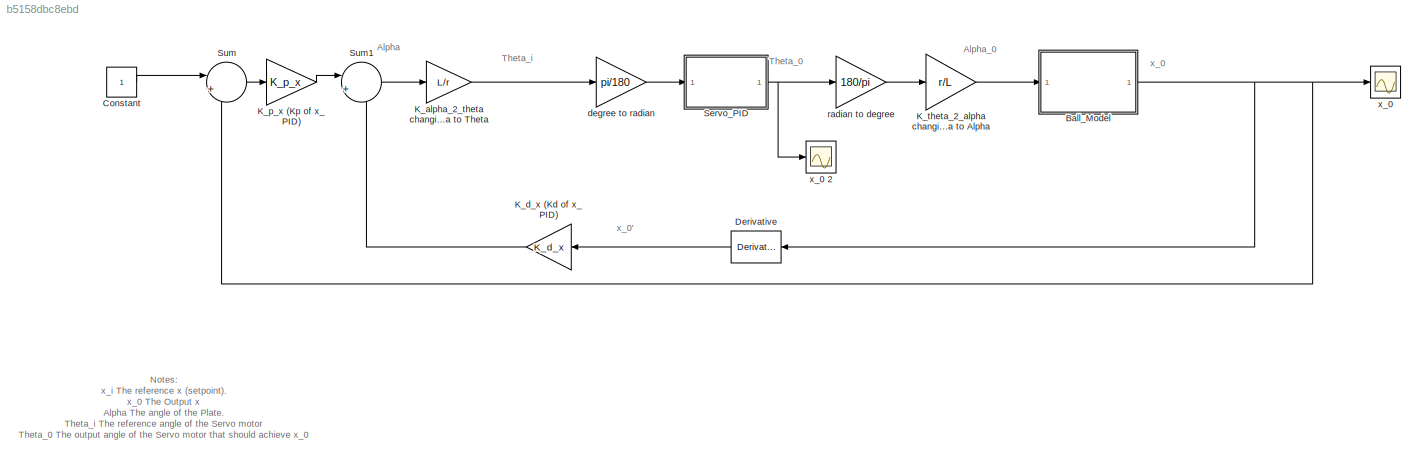
MODEL slx_b5158dbc8ebd
KIND model
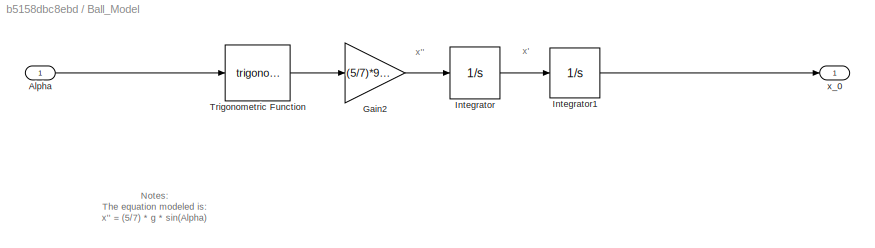
BLOCK [SubSystem] Ball_Model
  Ports = [1, 1]
  RequestExecContextInheritance = off
BLOCK [Inport] Ball_Model/Alpha
  IconDisplay = Port number
BLOCK [Gain] Ball_Model/Gain2
  Gain = (5/7)*9.81
  OutDataTypeStr = Inherit: Inherit via internal rule
  ParamDataTypeStr = Inherit: Inherit via internal rule
  SaturateOnIntegerOverflow = off
BLOCK [Integrator] Ball_Model/Integrator
  Ports = [1, 1]
BLOCK [Integrator] Ball_Model/Integrator1
  Ports = [1, 1]
BLOCK [Trigonometry] Ball_Model/Trigonometric Function
  Ports = [1, 1]
BLOCK [Outport] Ball_Model/x_0 
  IconDisplay = Port number
BLOCK [Constant] Constant
BLOCK [Derivative] Derivative
BLOCK [Gain] K_alpha_2_theta changing Alpha to Theta
  Gain = L/r
  OutDataTypeStr = Inherit: Inherit via internal rule
  ParamDataTypeStr = Inherit: Inherit via internal rule
  SaturateOnIntegerOverflow = off
BLOCK [Gain] K_d_x (Kd of x_PID)
  Gain = K_d_x
  OutDataTypeStr = Inherit: Inherit via internal rule
  ParamDataTypeStr = Inherit: Inherit via internal rule
  SaturateOnIntegerOverflow = off
BLOCK [Gain] K_p_x (Kp of x_PID) 
  Gain = K_p_x
  OutDataTypeStr = Inherit: Inherit via internal rule
  ParamDataTypeStr = Inherit: Inherit via internal rule
  SaturateOnIntegerOverflow = off
BLOCK [Gain] K_theta_2_alpha changing Theta to Alpha
  Gain = r/L
  OutDataTypeStr = Inherit: Inherit via internal rule
  ParamDataTypeStr = Inherit: Inherit via internal rule
  SaturateOnIntegerOverflow = off
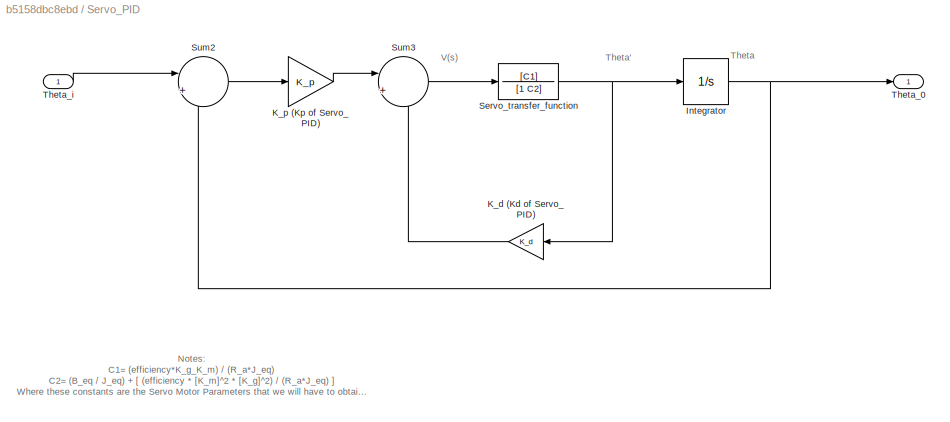
BLOCK [SubSystem] Servo_PID
  Ports = [1, 1]
  RequestExecContextInheritance = off
BLOCK [Integrator] Servo_PID/Integrator
  Ports = [1, 1]
BLOCK [Gain] Servo_PID/K_d (Kd of Servo_PID)
  Gain = K_d
  OutDataTypeStr = Inherit: Inherit via internal rule
  ParamDataTypeStr = Inherit: Inherit via internal rule
  SaturateOnIntegerOverflow = off
BLOCK [Gain] Servo_PID/K_p (Kp of Servo_PID)
  Gain = K_p
  OutDataTypeStr = Inherit: Inherit via internal rule
  ParamDataTypeStr = Inherit: Inherit via internal rule
  SaturateOnIntegerOverflow = off
BLOCK [TransferFcn] Servo_PID/Servo_transfer_function 
  Denominator = [1 C2]
  Numerator = [C1]
BLOCK [Sum] Servo_PID/Sum2
  IconShape = round
  InputSameDT = off
  Inputs = |+-
  OutDataTypeStr = Inherit: Inherit via internal rule
  Ports = [2, 1]
  SaturateOnIntegerOverflow = off
BLOCK [Sum] Servo_PID/Sum3
  IconShape = round
  InputSameDT = off
  Inputs = |+-
  OutDataTypeStr = Inherit: Inherit via internal rule
  Ports = [2, 1]
  SaturateOnIntegerOverflow = off
BLOCK [Outport] Servo_PID/Theta_0
  IconDisplay = Port number
BLOCK [Inport] Servo_PID/Theta_i
  IconDisplay = Port number
BLOCK [Sum] Sum
  IconShape = round
  InputSameDT = off
  Inputs = |+-
  OutDataTypeStr = Inherit: Inherit via internal rule
  Ports = [2, 1]
  SaturateOnIntegerOverflow = off
BLOCK [Sum] Sum1
  IconShape = round
  InputSameDT = off
  Inputs = |+-
  OutDataTypeStr = Inherit: Inherit via internal rule
  Ports = [2, 1]
  SaturateOnIntegerOverflow = off
BLOCK [Gain] degree to radian
  Gain = pi/180
  OutDataTypeStr = Inherit: Inherit via internal rule
  ParamDataTypeStr = Inherit: Inherit via internal rule
  SaturateOnIntegerOverflow = off
BLOCK [Gain] radian to degree
  Gain = 180/pi
  OutDataTypeStr = Inherit: Inherit via internal rule
  ParamDataTypeStr = Inherit: Inherit via internal rule
  SaturateOnIntegerOverflow = off
BLOCK [Scope] x_0 
  Floating = off
  NumInputPorts = 1
  Ports = [1]
  ShowLegends = off
BLOCK [Scope] x_0 2
  Floating = off
  NumInputPorts = 1
  Ports = [1]
  SaveName = ScopeData2
  ShowLegends = off
ANNOTATION (root): Notes: x_i The reference x (setpoint). x_0 The Output x Alpha The angle of the Plate. Theta_i The reference angle of the Servo motor Theta_0 The output angle of the Servo motor that should achieve x_0 K_alpha_2_theta The ratio that changes alpha to theta (obtained from the geometry) L Length of the Plate r The arm of the servo motor This model is for one degree of freedom. The other degree of free...<+56ch>
ANNOTATION (root): Alpha
ANNOTATION (root): Alpha_0
ANNOTATION (root): Theta_0
ANNOTATION (root): Theta_i
ANNOTATION (root): x_0
ANNOTATION (root): x_0'
ANNOTATION Ball_Model: Notes: The equation modeled is: x'' = (5/7) * g * sin(Alpha)
ANNOTATION Ball_Model: x'
ANNOTATION Ball_Model: x''
ANNOTATION Servo_PID: Notes: C1= (efficiency*K_g_K_m) / (R_a*J_eq) C2= (B_eq / J_eq) + [ (efficiency * [K_m]^2 * [K_g]^2) / (R_a*J_eq) ] Where these constants are the Servo Motor Parameters that we will have to obtain (There are values for them in the ball and beam paper).
ANNOTATION Servo_PID: Theta
ANNOTATION Servo_PID: Theta'
ANNOTATION Servo_PID: V(s)
LINE Ball_Model/Alpha:1 -> Ball_Model/Trigonometric Function:1
LINE Ball_Model/Gain2:1 -> Ball_Model/Integrator:1
LINE Ball_Model/Integrator1:1 -> Ball_Model/x_0 :1
LINE Ball_Model/Integrator:1 -> Ball_Model/Integrator1:1
LINE Ball_Model/Trigonometric Function:1 -> Ball_Model/Gain2:1
NET Ball_Model:1 -> Derivative:1, Sum:2, x_0 :1
LINE Constant:1 -> Sum:1
LINE Derivative:1 -> K_d_x (Kd of x_PID):1
LINE K_alpha_2_theta changing Alpha to Theta:1 -> degree to radian:1
LINE K_d_x (Kd of x_PID):1 -> Sum1:2
LINE K_p_x (Kp of x_PID) :1 -> Sum1:1
LINE K_theta_2_alpha changing Theta to Alpha:1 -> Ball_Model:1
NET Servo_PID/Integrator:1 -> Servo_PID/Sum2:2, Servo_PID/Theta_0:1
LINE Servo_PID/K_d (Kd of Servo_PID):1 -> Servo_PID/Sum3:2
LINE Servo_PID/K_p (Kp of Servo_PID):1 -> Servo_PID/Sum3:1
NET Servo_PID/Servo_transfer_function :1 -> Servo_PID/Integrator:1, Servo_PID/K_d (Kd of Servo_PID):1
LINE Servo_PID/Sum2:1 -> Servo_PID/K_p (Kp of Servo_PID):1
LINE Servo_PID/Sum3:1 -> Servo_PID/Servo_transfer_function :1
LINE Servo_PID/Theta_i:1 -> Servo_PID/Sum2:1
NET Servo_PID:1 -> radian to degree:1, x_0 2:1
LINE Sum1:1 -> K_alpha_2_theta changing Alpha to Theta:1
LINE Sum:1 -> K_p_x (Kp of x_PID) :1
LINE degree to radian:1 -> Servo_PID:1
LINE radian to degree:1 -> K_theta_2_alpha changing Theta to Alpha:1
note: NET lines group one-source signal fan-out (src -> all destinations, sorted); 1:1 wires keep LINE
